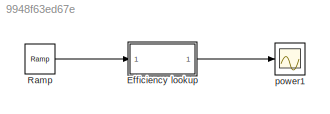
MODEL slx_9948f63ed67e
KIND model
CONFIG AbsTol = auto
CONFIG FixedStep = auto
CONFIG MaxStep = auto
CONFIG MinStep = auto
CONFIG RelTol = 1e-3
CONFIG SampleTimeConstraint = Unconstrained
CONFIG Solver = ode45
CONFIG SolverMode = Auto
CONFIG SolverName = ode45
CONFIG StartTime = 0.0
CONFIG StopTime = 200
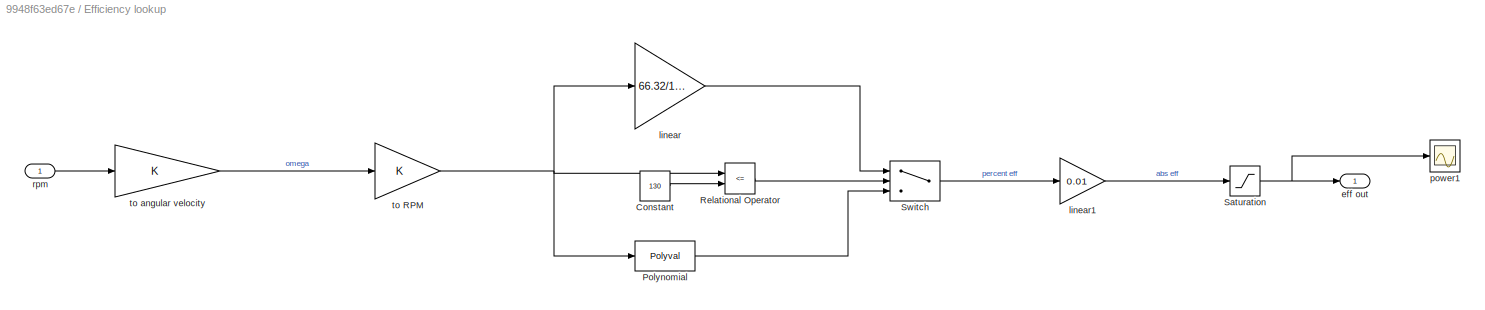
BLOCK [SubSystem] Efficiency lookup
  Ports = [1, 1]
  RequestExecContextInheritance = off
BLOCK [Constant] Efficiency lookup/Constant
  Value = 130
BLOCK [Polyval] Efficiency lookup/Polynomial
  Coefs = [-0.000000281154604 0.00025333618 -0.0949601636 18.9528272 -2124.26186  126769.071 -3146791.96]
BLOCK [RelationalOperator] Efficiency lookup/Relational Operator
  InputSameDT = off
  Operator = <=
  OutDataTypeStr = boolean
  Ports = [2, 1]
BLOCK [Saturate] Efficiency lookup/Saturation
  InputPortMap = u0
  LowerLimit = 0.05
  Ports = [1, 1]
  UpperLimit = 1
BLOCK [Switch] Efficiency lookup/Switch
  Criteria = u2 > Threshold
  InputSameDT = off
  SaturateOnIntegerOverflow = off
BLOCK [Outport] Efficiency lookup/eff out
  IconDisplay = Port number
BLOCK [Gain] Efficiency lookup/linear
  Gain = 66.32/130
  OutDataTypeStr = Inherit: Inherit via internal rule
  ParamDataTypeStr = Inherit: Inherit via internal rule
  SaturateOnIntegerOverflow = off
BLOCK [Gain] Efficiency lookup/linear1
  Gain = 0.01
  OutDataTypeStr = Inherit: Inherit via internal rule
  ParamDataTypeStr = Inherit: Inherit via internal rule
  SaturateOnIntegerOverflow = off
BLOCK [Scope] Efficiency lookup/power1
  Floating = off
  MaxDataPoints = scope_history
  NumInputPorts = 1
  Ports = [1]
  SaveName = ScopeData13
  TimeRange = 700
  YMax = 140
  YMin = 0
BLOCK [Inport] Efficiency lookup/rpm 
  IconDisplay = Port number
BLOCK [Gain] Efficiency lookup/to RPM
  OutDataTypeStr = Inherit: Inherit via internal rule
  ParamDataTypeStr = Inherit: Inherit via internal rule
  SaturateOnIntegerOverflow = off
BLOCK [Gain] Efficiency lookup/to angular velocity
  OutDataTypeStr = Inherit: Inherit via internal rule
  ParamDataTypeStr = Inherit: Inherit via internal rule
  SaturateOnIntegerOverflow = off
BLOCK [Reference] Ramp  REF=simulink/Sources/Ramp
  Ports = [0, 1]
  SourceBlock = simulink/Sources/Ramp
  SourceType = Ramp
  VectorParams1D = on
  X0 = 0
  slope = 1
  start = 0
BLOCK [Scope] power1
  Floating = off
  MaxDataPoints = scope_history
  NumInputPorts = 1
  Ports = [1]
  SaveName = ScopeData7
  TimeRange = 700
  YMax = 550
  YMin = 0
  ZoomMode = xonly
LINE Efficiency lookup/Constant:1 -> Efficiency lookup/Relational Operator:2
LINE Efficiency lookup/Polynomial:1 -> Efficiency lookup/Switch:3
LINE Efficiency lookup/Relational Operator:1 -> Efficiency lookup/Switch:2
NET Efficiency lookup/Saturation:1 -> Efficiency lookup/eff out:1, Efficiency lookup/power1:1
LINE Efficiency lookup/Switch:1 -> Efficiency lookup/linear1:1
LINE Efficiency lookup/linear1:1 -> Efficiency lookup/Saturation:1
LINE Efficiency lookup/linear:1 -> Efficiency lookup/Switch:1
LINE Efficiency lookup/rpm :1 -> Efficiency lookup/to angular velocity:1
NET Efficiency lookup/to RPM:1 -> Efficiency lookup/Polynomial:1, Efficiency lookup/Relational Operator:1, Efficiency lookup/linear:1
LINE Efficiency lookup/to angular velocity:1 -> Efficiency lookup/to RPM:1
LINE Efficiency lookup:1 -> power1:1
LINE Ramp:1 -> Efficiency lookup:1
note: NET lines group one-source signal fan-out (src -> all destinations, sorted); 1:1 wires keep LINE
